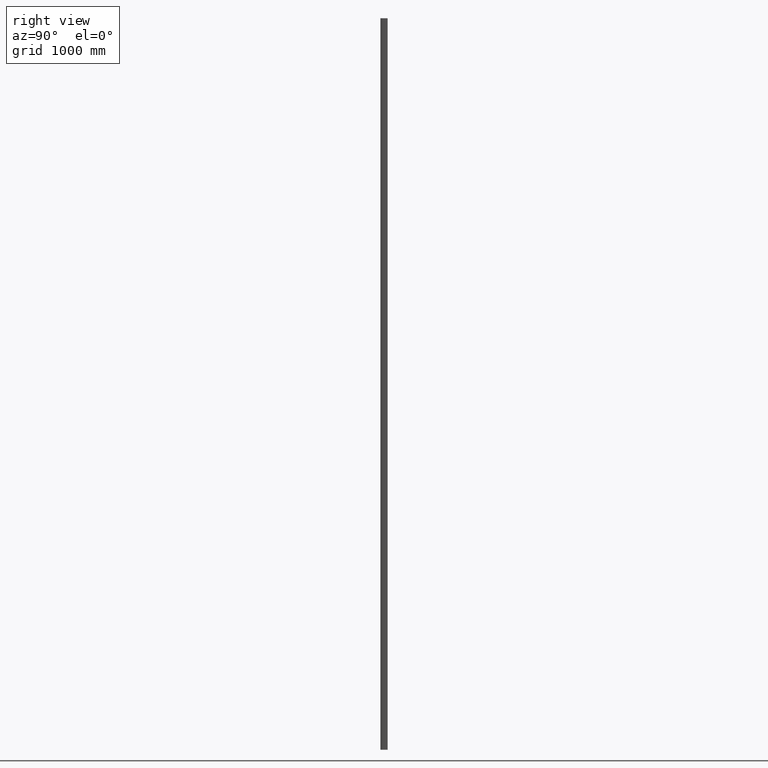
[diagram: clean part render]
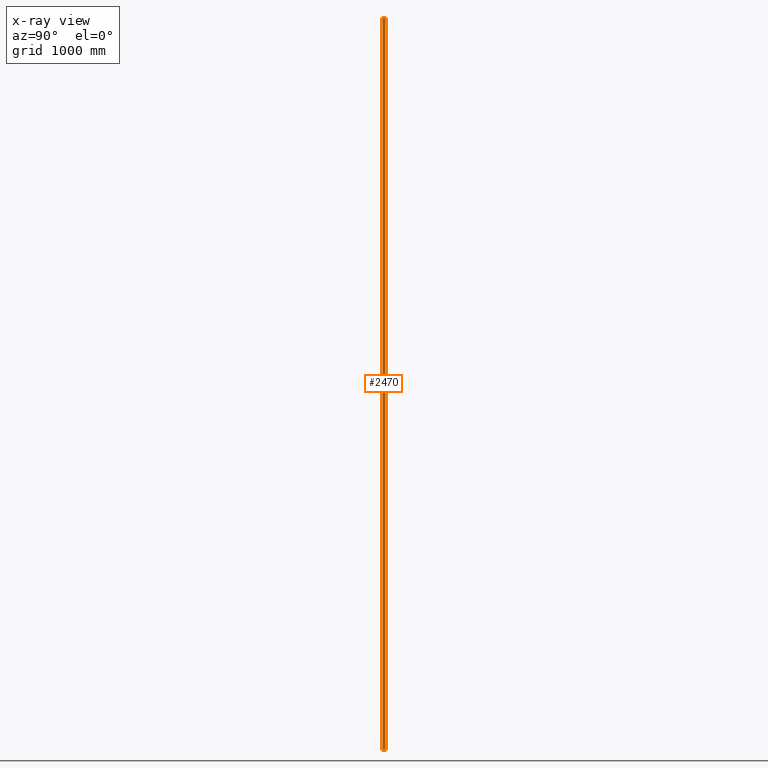
[diagram: x-ray — body ghosted, one internal face saturated and labeled with its STEP entity id]
A machine part, right view, then the same camera in x-ray: the body is ghosted and one INTERNAL B-rep face — a face not visible from any outside direction — is saturated and labeled: STEP entity #2470.
In plain terms, the highlighted planar face has unit normal (1, -0, 0).
Its self-contained STEP definition (entity closure, byte-faithful):
#605 = FACE_OUTER_BOUND ( 'NONE', #3398, .T. ) ;
#786 = EDGE_CURVE ( 'NONE', #1619, #1627, #2284, .T. ) ;
#788 = EDGE_CURVE ( 'NONE', #1627, #1598, #2288, .T. ) ;
#789 = EDGE_CURVE ( 'NONE', #1623, #1598, #2290, .T. ) ;
#790 = EDGE_CURVE ( 'NONE', #1619, #1623, #884, .T. ) ;
#884 = LINE ( 'NONE', #1025, #885 ) ;
#885 = VECTOR ( 'NONE', #1026, 1000.000000000000000 ) ;
#1017 = CARTESIAN_POINT ( 'NONE',  ( 15.00000000000000000, -11.00000000000000000, -3000.000000000000000 ) ) ;
#1018 = DIRECTION ( 'NONE',  ( 0.0000000000000000000, 0.0000000000000000000, -1.000000000000000000 ) ) ;
#1021 = CARTESIAN_POINT ( 'NONE',  ( 15.00000000000000000, 0.0000000000000000000, -6000.000000000000000 ) ) ;
#1022 = DIRECTION ( 'NONE',  ( 0.0000000000000000000, 1.000000000000000000, 0.0000000000000000000 ) ) ;
#1023 = CARTESIAN_POINT ( 'NONE',  ( 15.00000000000000000, 11.00000000000000000, -3000.000000000000000 ) ) ;
#1024 = DIRECTION ( 'NONE',  ( -0.0000000000000000000, -0.0000000000000000000, -1.000000000000000000 ) ) ;
#1025 = CARTESIAN_POINT ( 'NONE',  ( 15.00000000000000000, 0.0000000000000000000, 0.0000000000000000000 ) ) ;
#1026 = DIRECTION ( 'NONE',  ( 0.0000000000000000000, 1.000000000000000000, 0.0000000000000000000 ) ) ;
#1410 = AXIS2_PLACEMENT_3D ( 'NONE', #2003, #2004, #2005 ) ;
#1598 = VERTEX_POINT ( 'NONE', #3031 ) ;
#1619 = VERTEX_POINT ( 'NONE', #3052 ) ;
#1623 = VERTEX_POINT ( 'NONE', #3056 ) ;
#1627 = VERTEX_POINT ( 'NONE', #3060 ) ;
#2002 = PLANE ( 'NONE',  #1410 ) ;
#2003 = CARTESIAN_POINT ( 'NONE',  ( 15.00000000000000000, -11.00000000000000000, 0.0000000000000000000 ) ) ;
#2004 = DIRECTION ( 'NONE',  ( 1.000000000000000000, -0.0000000000000000000, 0.0000000000000000000 ) ) ;
#2005 = DIRECTION ( 'NONE',  ( 0.0000000000000000000, 0.0000000000000000000, -1.000000000000000000 ) ) ;
#2284 = LINE ( 'NONE', #1017, #2285 ) ;
#2285 = VECTOR ( 'NONE', #1018, 1000.000000000000000 ) ;
#2288 = LINE ( 'NONE', #1021, #2289 ) ;
#2289 = VECTOR ( 'NONE', #1022, 1000.000000000000000 ) ;
#2290 = LINE ( 'NONE', #1023, #2291 ) ;
#2291 = VECTOR ( 'NONE', #1024, 1000.000000000000000 ) ;
#2470 = ADVANCED_FACE ( 'NONE', ( #605 ), #2002, .T. ) ;
#3031 = CARTESIAN_POINT ( 'NONE',  ( 15.00000000000000000, 10.99999999500000100, -6000.000000000000000 ) ) ;
#3052 = CARTESIAN_POINT ( 'NONE',  ( 15.00000000000000000, -10.99999999499999800, 0.0000000000000000000 ) ) ;
#3056 = CARTESIAN_POINT ( 'NONE',  ( 15.00000000000000000, 10.99999999500000100, 0.0000000000000000000 ) ) ;
#3060 = CARTESIAN_POINT ( 'NONE',  ( 15.00000000000000000, -10.99999999499999800, -6000.000000000000000 ) ) ;
#3268 = ORIENTED_EDGE ( 'NONE', *, *, #788, .T. ) ;
#3269 = ORIENTED_EDGE ( 'NONE', *, *, #789, .F. ) ;
#3270 = ORIENTED_EDGE ( 'NONE', *, *, #790, .F. ) ;
#3271 = ORIENTED_EDGE ( 'NONE', *, *, #786, .T. ) ;
#3398 = EDGE_LOOP ( 'NONE', ( #3268, #3269, #3270, #3271 ) ) ;